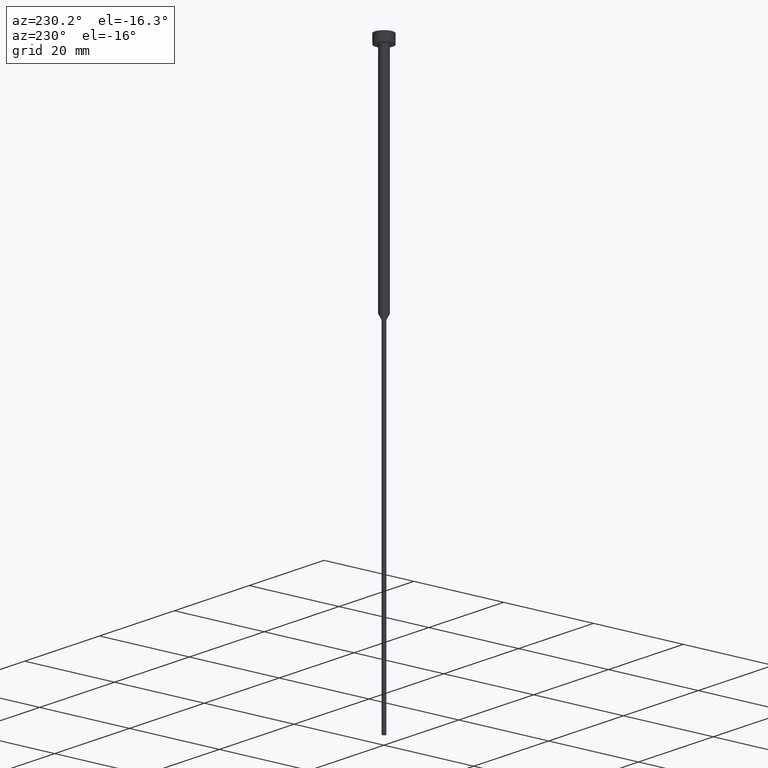
[diagram: clean part render]
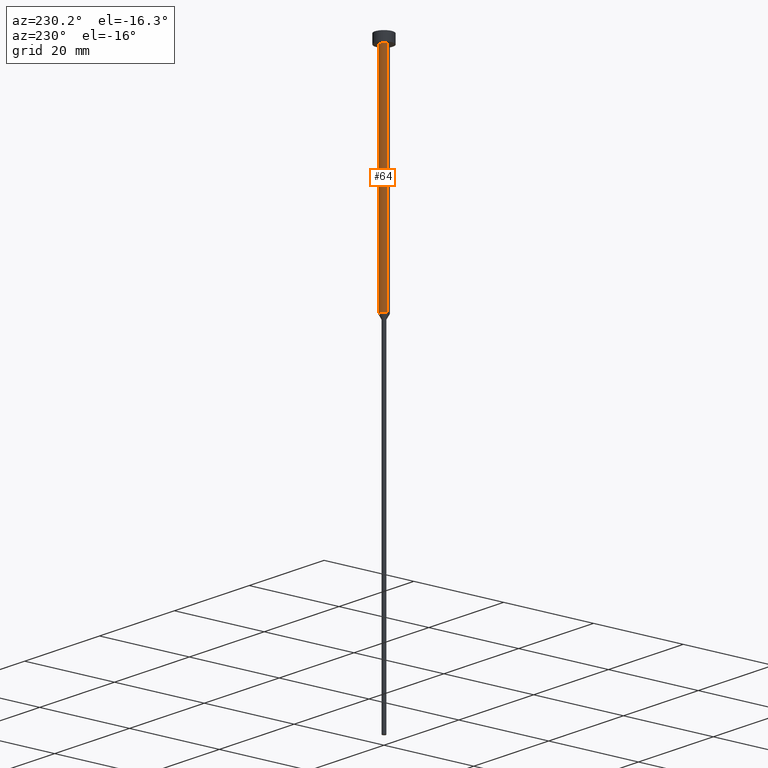
[diagram: same view with one face highlighted and labeled with its STEP entity id]
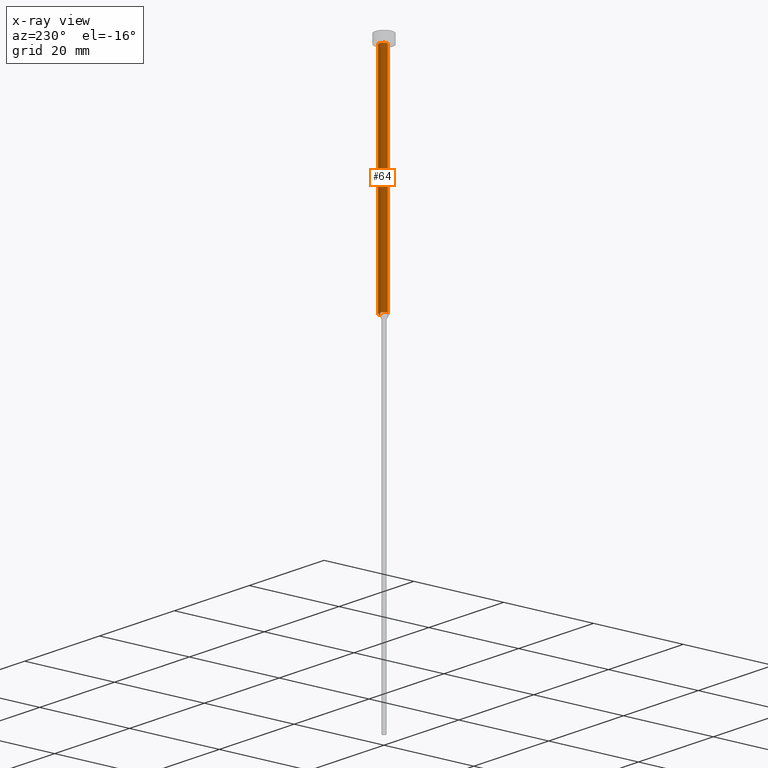
[diagram: x-ray of the same camera — body ghosted, the highlighted face saturated]
A machine part, auxiliary view. The second image highlights one B-rep face of the part: STEP entity #64.
The next image is the same camera in x-ray: the body ghosted, the highlighted face saturated — about 0% of this face is hidden behind the body in this view.
In plain terms, the highlighted cylindrical surface (edge-blend (fillet) strip) has radius 1 mm, axis along (-0, -0, 1).
Its self-contained STEP definition (entity closure, byte-faithful):
#1 = VERTEX_POINT ( 'NONE', #44 ) ;
#5 = EDGE_CURVE ( 'NONE', #203, #1, #145, .T. ) ;
#7 = LINE ( 'NONE', #185, #189 ) ;
#17 = VERTEX_POINT ( 'NONE', #328 ) ;
#32 = CYLINDRICAL_SURFACE ( 'NONE', #147, 1.000000000000003331 ) ;
#36 = CARTESIAN_POINT ( 'NONE',  ( 0.000000000000000000, 0.000000000000000000, -50.00000000000000000 ) ) ;
#44 = CARTESIAN_POINT ( 'NONE',  ( 1.000000000000003553, 0.000000000000000000, -2.000000000000000444 ) ) ;
#51 = CIRCLE ( 'NONE', #58, 1.000000000000003553 ) ;
#58 = AXIS2_PLACEMENT_3D ( 'NONE', #98, #182, #298 ) ;
#61 = AXIS2_PLACEMENT_3D ( 'NONE', #36, #135, #338 ) ;
#63 = ORIENTED_EDGE ( 'NONE', *, *, #257, .T. ) ;
#64 = ADVANCED_FACE ( 'NONE', ( #272 ), #32, .T. ) ;
#66 = VERTEX_POINT ( 'NONE', #239 ) ;
#88 = ORIENTED_EDGE ( 'NONE', *, *, #299, .T. ) ;
#98 = CARTESIAN_POINT ( 'NONE',  ( 0.000000000000000000, 0.000000000000000000, -2.000000000000000444 ) ) ;
#111 = CARTESIAN_POINT ( 'NONE',  ( 1.000000000000003331, 0.000000000000000000, 0.000000000000000000 ) ) ;
#135 = DIRECTION ( 'NONE',  ( -0.000000000000000000, -0.000000000000000000, 1.000000000000000000 ) ) ;
#145 = LINE ( 'NONE', #111, #191 ) ;
#147 = AXIS2_PLACEMENT_3D ( 'NONE', #156, #178, #307 ) ;
#153 = DIRECTION ( 'NONE',  ( -0.000000000000000000, -0.000000000000000000, 1.000000000000000000 ) ) ;
#156 = CARTESIAN_POINT ( 'NONE',  ( 0.000000000000000000, 0.000000000000000000, 0.000000000000000000 ) ) ;
#178 = DIRECTION ( 'NONE',  ( -0.000000000000000000, -0.000000000000000000, 1.000000000000000000 ) ) ;
#182 = DIRECTION ( 'NONE',  ( -0.000000000000000000, -0.000000000000000000, 1.000000000000000000 ) ) ;
#185 = CARTESIAN_POINT ( 'NONE',  ( -1.000000000000003331, 1.224646799147357151E-16, 0.000000000000000000 ) ) ;
#189 = VECTOR ( 'NONE', #153, 1000.000000000000000 ) ;
#191 = VECTOR ( 'NONE', #284, 1000.000000000000000 ) ;
#203 = VERTEX_POINT ( 'NONE', #332 ) ;
#218 = EDGE_CURVE ( 'NONE', #1, #17, #51, .T. ) ;
#227 = ORIENTED_EDGE ( 'NONE', *, *, #5, .F. ) ;
#230 = ORIENTED_EDGE ( 'NONE', *, *, #218, .F. ) ;
#239 = CARTESIAN_POINT ( 'NONE',  ( -1.000000000000003109, 1.224646799147356905E-16, -50.00000000000000000 ) ) ;
#253 = CIRCLE ( 'NONE', #61, 1.000000000000003109 ) ;
#257 = EDGE_CURVE ( 'NONE', #203, #66, #253, .T. ) ;
#272 = FACE_OUTER_BOUND ( 'NONE', #294, .T. ) ;
#284 = DIRECTION ( 'NONE',  ( -0.000000000000000000, -0.000000000000000000, 1.000000000000000000 ) ) ;
#294 = EDGE_LOOP ( 'NONE', ( #63, #88, #230, #227 ) ) ;
#298 = DIRECTION ( 'NONE',  ( 1.000000000000000000, 0.000000000000000000, 0.000000000000000000 ) ) ;
#299 = EDGE_CURVE ( 'NONE', #66, #17, #7, .T. ) ;
#307 = DIRECTION ( 'NONE',  ( 1.000000000000000000, 0.000000000000000000, 0.000000000000000000 ) ) ;
#328 = CARTESIAN_POINT ( 'NONE',  ( -1.000000000000003553, 1.224646799147357398E-16, -2.000000000000000444 ) ) ;
#332 = CARTESIAN_POINT ( 'NONE',  ( 1.000000000000003109, 0.000000000000000000, -50.00000000000000000 ) ) ;
#338 = DIRECTION ( 'NONE',  ( 1.000000000000000000, 0.000000000000000000, 0.000000000000000000 ) ) ;